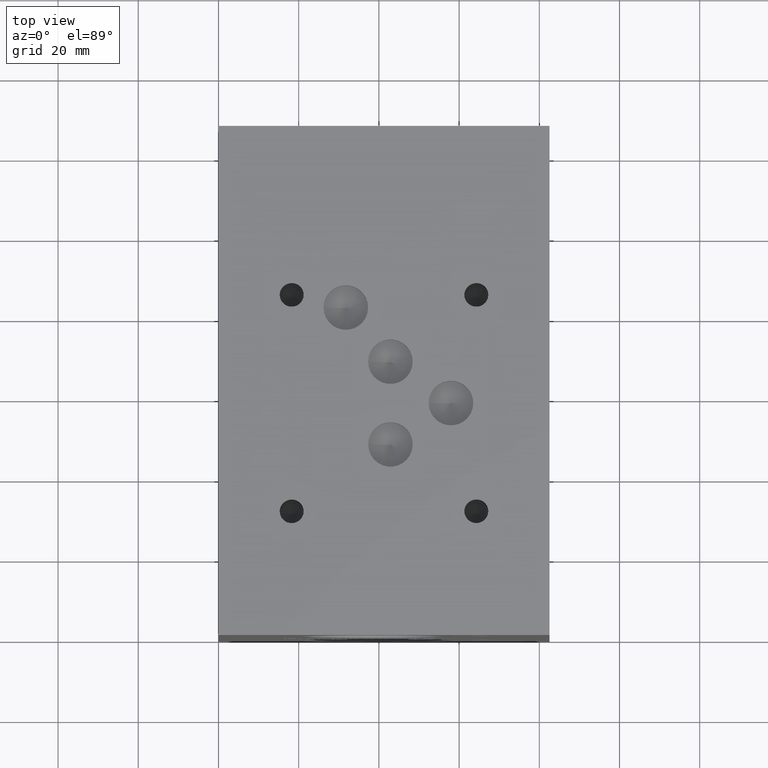
[diagram: clean part render]
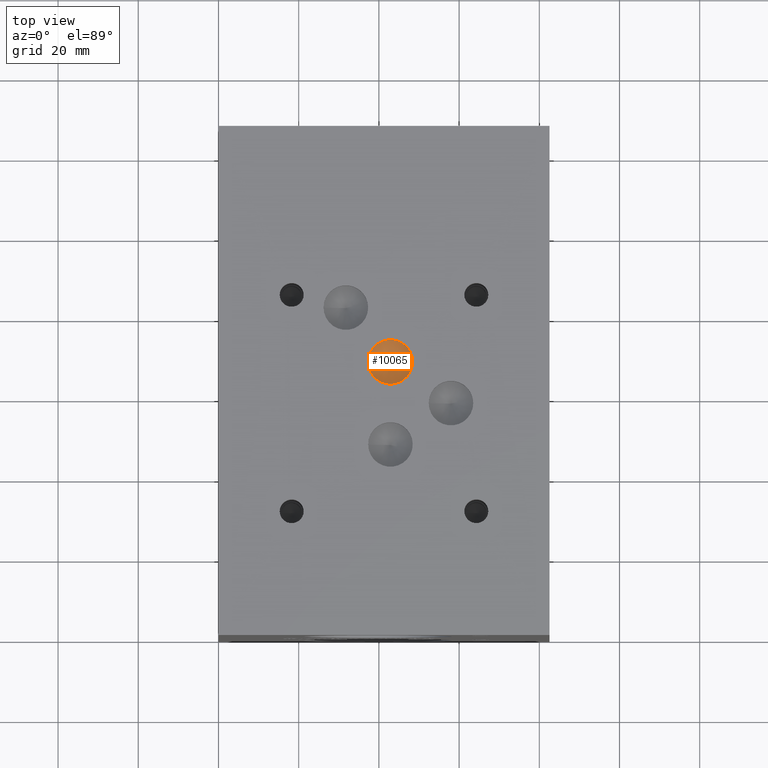
[diagram: same view with one face highlighted and labeled with its STEP entity id]
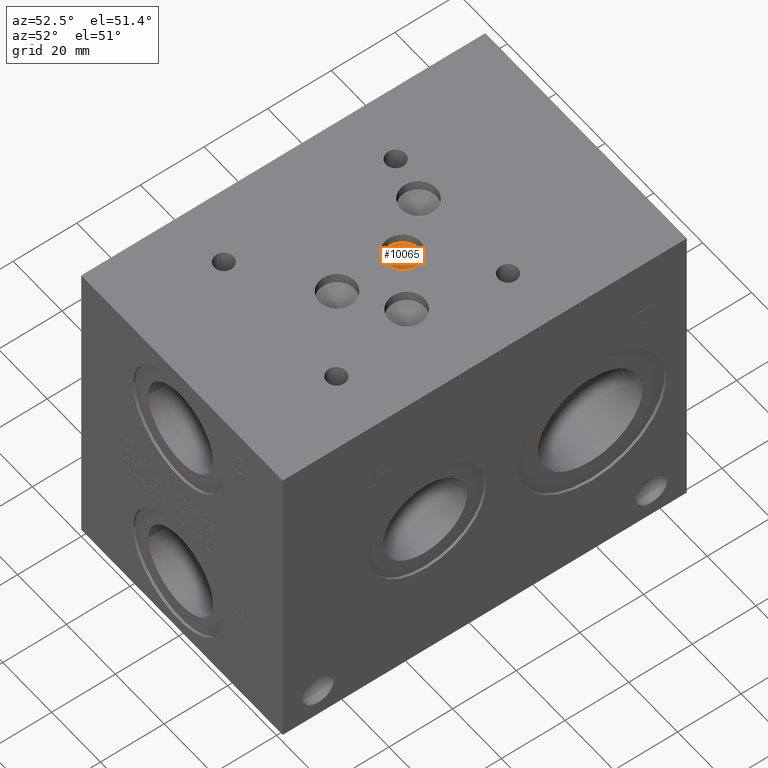
[diagram: same view with one face highlighted and labeled with its STEP entity id]
A machine part, top view. The second image highlights one B-rep face of the part: STEP entity #10065.
A second angle (auxiliary view) of the same face is appended — the face is thin or edge-on in the first view.
In plain terms, the highlighted conical surface has half-angle 60 deg.
Its self-contained STEP definition (entity closure, byte-faithful):
#74=CONICAL_SURFACE('',#10590,2.778125,1.0471975511966);
#205=CIRCLE('',#10591,5.55625);
#206=CIRCLE('',#10592,5.55625);
#1129=FACE_OUTER_BOUND('',#1707,.T.);
#1707=EDGE_LOOP('',(#8890,#8891,#8892,#8893));
#2697=LINE('',#17080,#3667);
#3667=VECTOR('',#12580,2.778125);
#4838=VERTEX_POINT('',#17076);
#4839=VERTEX_POINT('',#17077);
#4840=VERTEX_POINT('',#17079);
#6211=EDGE_CURVE('',#4838,#4839,#205,.T.);
#6212=EDGE_CURVE('',#4839,#4840,#2697,.T.);
#6213=EDGE_CURVE('',#4839,#4838,#206,.T.);
#8890=ORIENTED_EDGE('',*,*,#6211,.T.);
#8891=ORIENTED_EDGE('',*,*,#6212,.T.);
#8892=ORIENTED_EDGE('',*,*,#6212,.F.);
#8893=ORIENTED_EDGE('',*,*,#6213,.T.);
#10065=ADVANCED_FACE('',(#1129),#74,.F.);
#10590=AXIS2_PLACEMENT_3D('',#17075,#12576,#12577);
#10591=AXIS2_PLACEMENT_3D('',#17078,#12578,#12579);
#10592=AXIS2_PLACEMENT_3D('',#17081,#12581,#12582);
#12576=DIRECTION('center_axis',(0.,0.,1.));
#12577=DIRECTION('ref_axis',(1.,0.,0.));
#12578=DIRECTION('center_axis',(0.,0.,1.));
#12579=DIRECTION('ref_axis',(1.,0.,0.));
#12580=DIRECTION('',(0.866025403784439,1.06057523872491E-16,-0.5));
#12581=DIRECTION('center_axis',(0.,0.,1.));
#12582=DIRECTION('ref_axis',(1.,0.,0.));
#17075=CARTESIAN_POINT('Origin',(42.8625,68.15328,96.7881487834076));
#17076=CARTESIAN_POINT('',(48.41875,68.15328,98.3921));
#17077=CARTESIAN_POINT('',(37.30625,68.15328,98.3921));
#17078=CARTESIAN_POINT('Origin',(42.8625,68.15328,98.3921));
#17079=CARTESIAN_POINT('',(42.8625,68.15328,95.1841975668151));
#17080=CARTESIAN_POINT('',(40.084375,68.15328,96.7881487834076));
#17081=CARTESIAN_POINT('Origin',(42.8625,68.15328,98.3921));